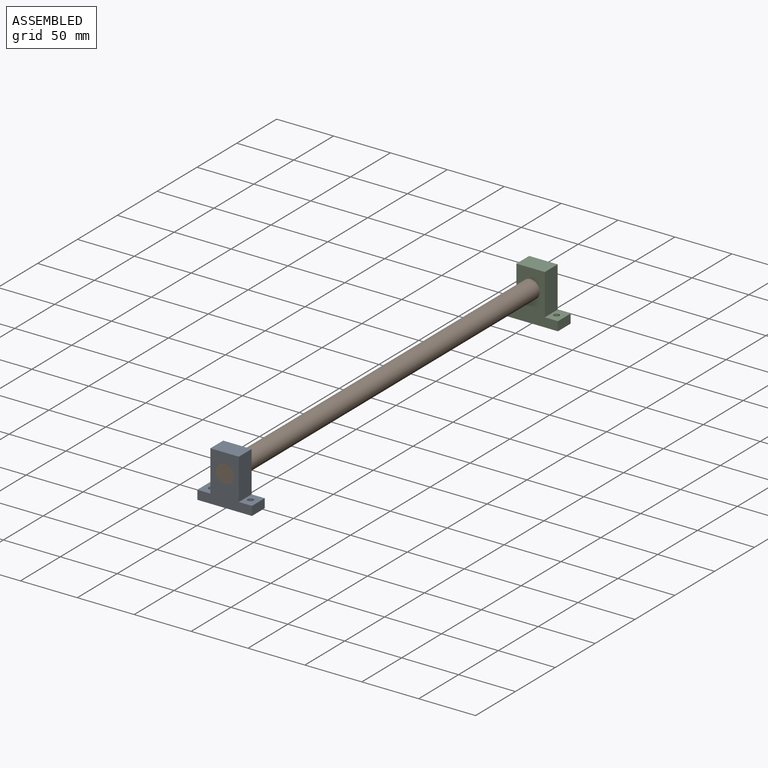
[diagram: assembled view]
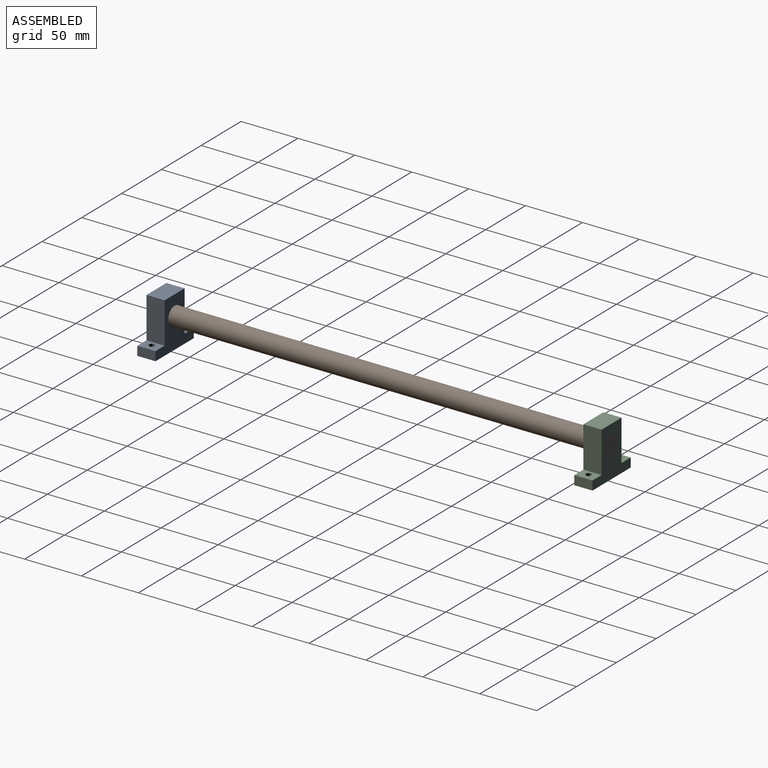
[diagram: assembled view, second angle]
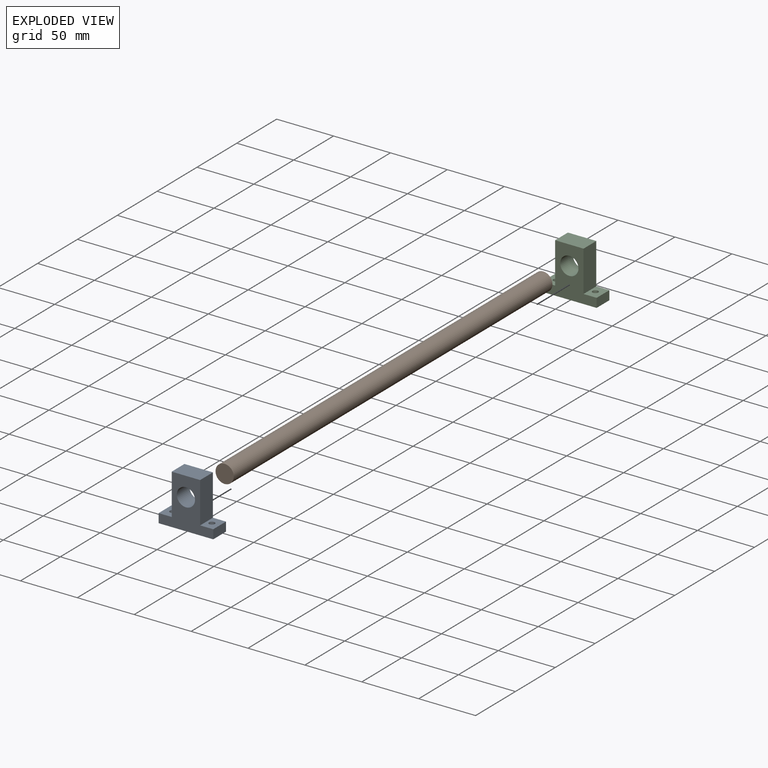
[diagram: exploded view]
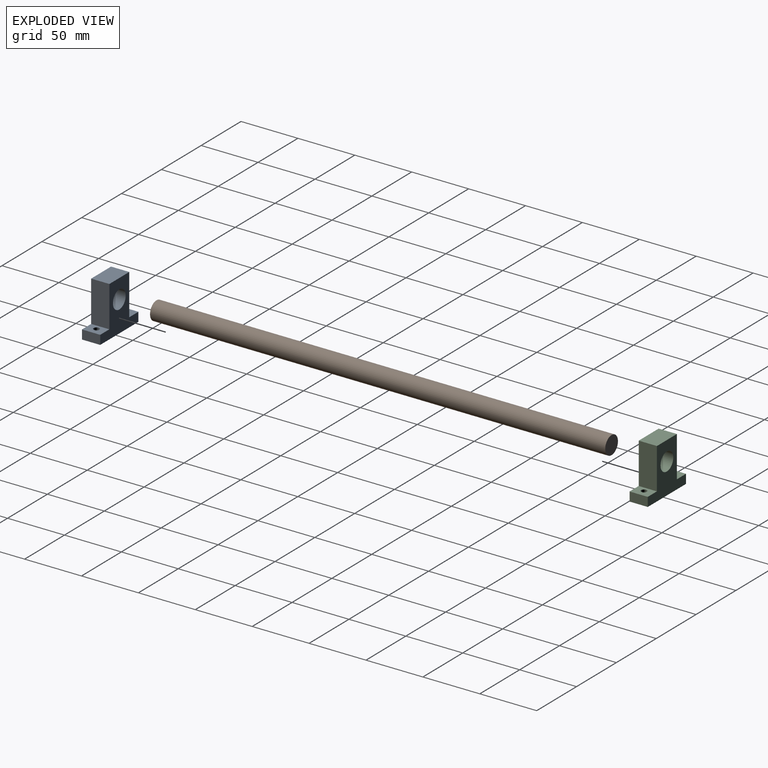
[diagram: exploded view, second angle]
ASSEMBLY  parts=3 mates=2
PART A: 13 faces, bbox 48x16x44 mm
  f0: plane 48x16mm, normal (0,0,-1), area 728.7mm2, adj f1,f8,f9,f10,f11,f12
  f1: plane 16x8mm, normal (1,0,0), area 128mm2, adj f0,f2,f9,f10
  f2: plane 16x11.5mm, normal (0,0,1), area 164.4mm2, adj f1,f3,f9,f10,f12
  f3: plane 36x16mm, normal (1,0,0), area 576mm2, adj f2,f4,f9,f10
  f4: plane 25x16mm, normal (0,0,1), area 400mm2, adj f3,f5,f9,f10
  f5: plane 36x16mm, normal (-1,0,0), area 576mm2, adj f4,f6,f9,f10
  f6: plane 16x11.5mm, normal (0,0,1), area 164.4mm2, adj f5,f8,f9,f10,f11
  f7: cylinder r=8mm len=16mm, axis (0,-1,0), area 804.2mm2, adj f9,f10
  f8: plane 16x8mm, normal (-1,0,0), area 128mm2, adj f0,f6,f9,f10
  f9: plane 48x44mm, normal (0,1,0), area 1082.9mm2, adj f0,f1,f2,f3,f4,f5,f6,f7
  f10: plane 48x44mm, normal (0,-1,0), area 1082.9mm2, adj f0,f1,f2,f3,f4,f5,f6,f7
  f11: cylinder r=2.5mm len=8mm, axis (0,0,1), area 125.7mm2, adj f0,f6
  f12: cylinder r=2.5mm len=8mm, axis (0,0,1), area 125.7mm2, adj f0,f2
PART B: 3 faces, bbox 16x400x16 mm
  f0: cylinder r=8mm len=400mm, axis (0,-1,0), area 20106.2mm2, adj f1,f2
  f1: plane 16x16mm, normal (0,1,0), area 201.1mm2, adj f0
  f2: plane 16x16mm, normal (0,-1,0), area 201.1mm2, adj f0
PART C: same geometry as A
PLACE A t=(6.65,-166.57,5.39)mm
PLACE B t=(6.65,-174.57,32.39)mm
PLACE C t=(6.65,217.43,5.39)mm
MATE fastened A.f7 <-> B.f0  axis (0,-1,0) through (6.65,-174.57,32.39)mm
MATE fastened C.f7 <-> B.f0  axis (0,-1,0) through (6.65,225.43,32.39)mm
